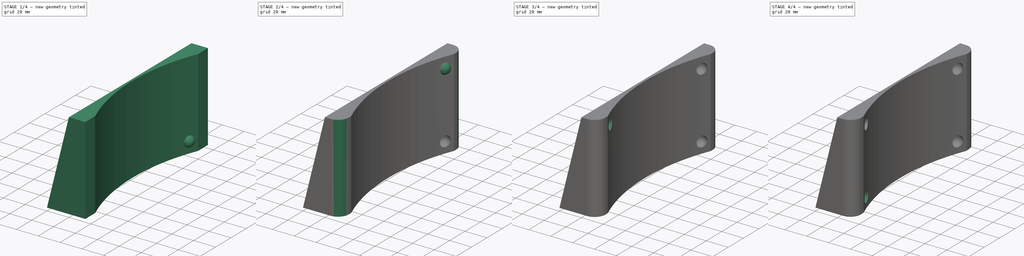
[diagram: build sequence overview — one tinted view per stage of 4, left to right]
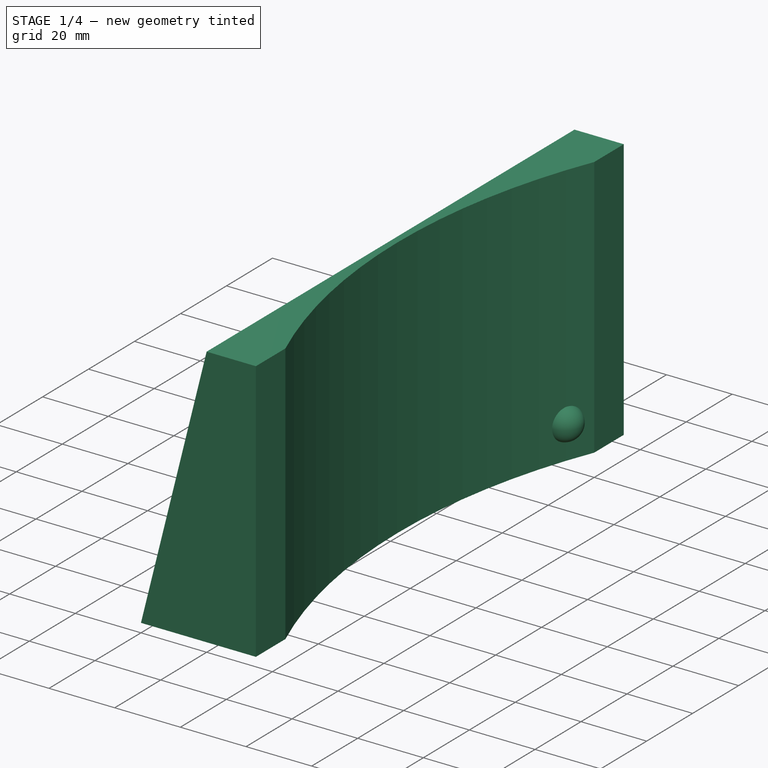
[diagram: stage 1 of 4 — iso view after this stage's code; geometry added in this stage tinted green]
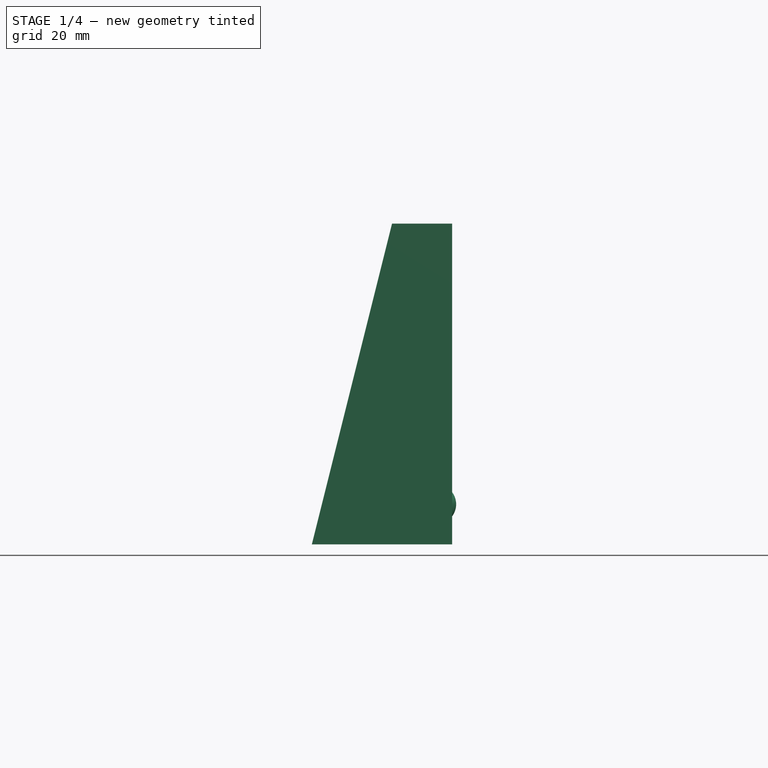
[diagram: stage 1 of 4 — front view after this stage's code; geometry added in this stage tinted green]
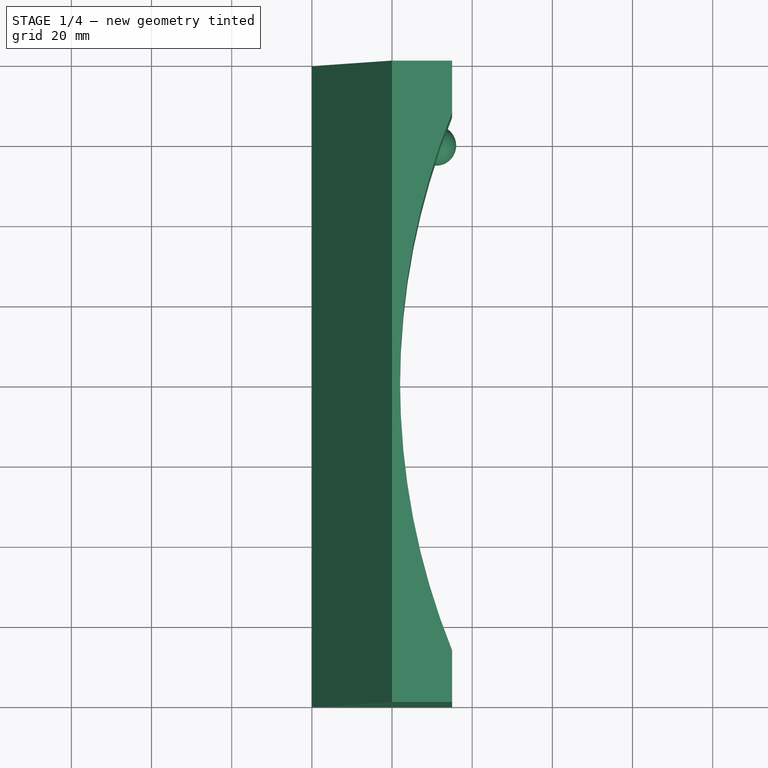
[diagram: stage 1 of 4 — top view after this stage's code; geometry added in this stage tinted green]
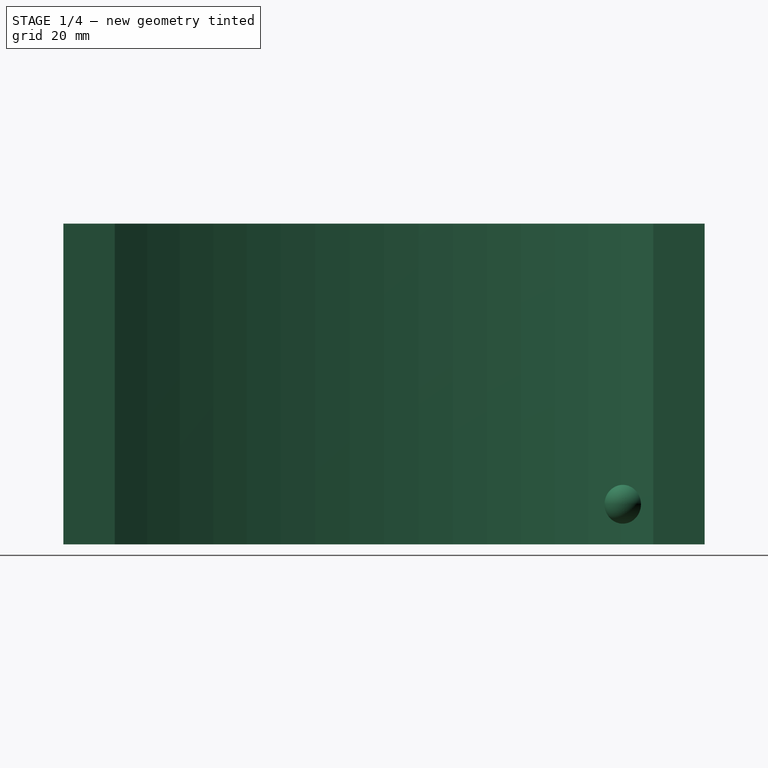
[diagram: stage 1 of 4 — right view after this stage's code; geometry added in this stage tinted green]
FCSTD DOCUMENT  (FreeCAD 0.16R6706 (Git))
Label: support-v1
License: All rights reserved
LicenseURL: http://en.wikipedia.org/wiki/All_rights_reserved
objects: Part::Sphere×4, Part::Cut×4, Sketcher::SketchObject×2, PartDesign::Pad×1, PartDesign::Pocket×1, PartDesign::Fillet×1, PartDesign::Chamfer×1
note: 16 computed .brp shape members not serialized (recipe doc carries the construction recipe); baked Part::Feature solids carry a one-line shape summary decoded from their .brp

FEATURE [Sketcher::SketchObject] Sketch
  Placement = pos=(0,0,0) rot=(-1,0,0;4.71239rad)
  sketch-geometry (4):
    g0: LineSegment StartX=0 StartY=0 StartZ=0 EndX=35 EndY=0 EndZ=0
    g1: LineSegment StartX=35 StartY=0 StartZ=0 EndX=35 EndY=80 EndZ=0
    g2: LineSegment StartX=35 StartY=80 StartZ=0 EndX=20 EndY=80 EndZ=0
    g3: LineSegment StartX=20 StartY=80 StartZ=0 EndX=0 EndY=0 EndZ=0
  constraints (11):
    c: Horizontal(g0)
    c: Coincident(g0,g1)
    c: Vertical(g1)
    c: Coincident(g1,g2)
    c: Horizontal(g2)
    c: Coincident(g2,g3)
    c: Coincident(g3,g0)
    c: DistanceX(g2,g2) = 15
    c: DistanceX(g0,g0) = 35
    c: DistanceY(g1,g1) = 80
    c: Coincident(g0,g-1)
FEATURE [PartDesign::Pad] Pad
  Length = 160
  Length2 = 100
  Placement = pos=(0,0,0) rot=(-1,0,0;4.71239rad)
  Sketch = -> Sketch
  Type = 0
FEATURE [Sketcher::SketchObject] Sketch001
  Placement = pos=(0,0,80) rot=(0,0,1;3.14159rad)
  Support = -> Pad [Face3]
  sketch-geometry (1):
    g0: Circle CenterX=-202 CenterY=80 CenterZ=0 NormalX=0 NormalY=0 NormalZ=1 Radius=180
  constraints (3):
    c: DistanceX(g0,g-1) = 202
    c: DistanceY(g-1,g0) = 80
    c: Radius(g0) = 180
FEATURE [PartDesign::Pocket] Pocket
  Length = 5
  Placement = pos=(0,0,0) rot=(-1,0,0;4.71239rad)
  Sketch = -> Sketch001
  Type = 1
FEATURE [Part::Sphere] Sphere  label="Sphère"
  Angle1 = -90
  Angle2 = 90
  Angle3 = 360
  Placement = pos=(31,-20,10) rot=(0,0,1;0rad)
  Radius = 5
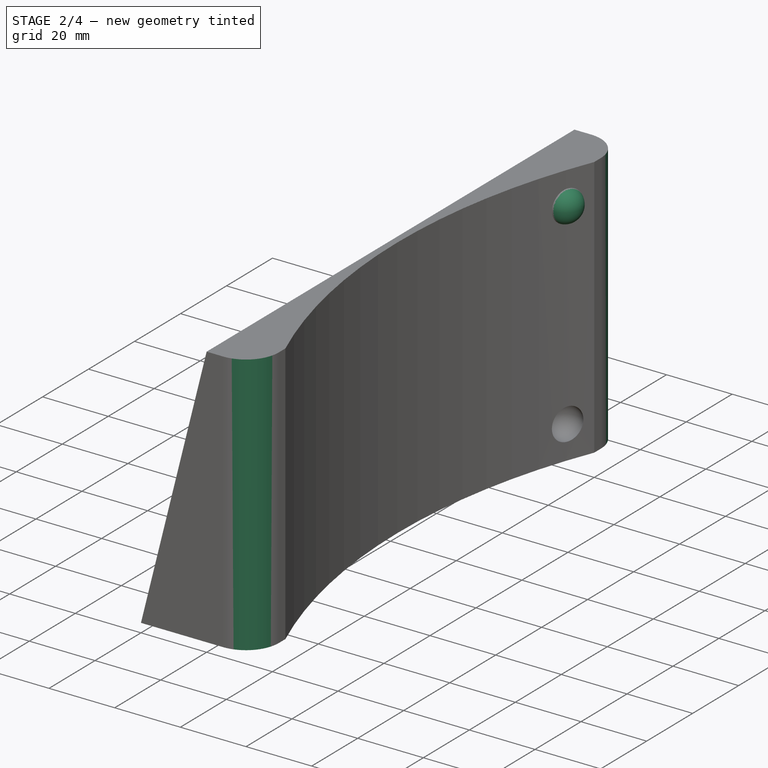
[diagram: stage 2 of 4 — iso view after this stage's code; geometry added in this stage tinted green]
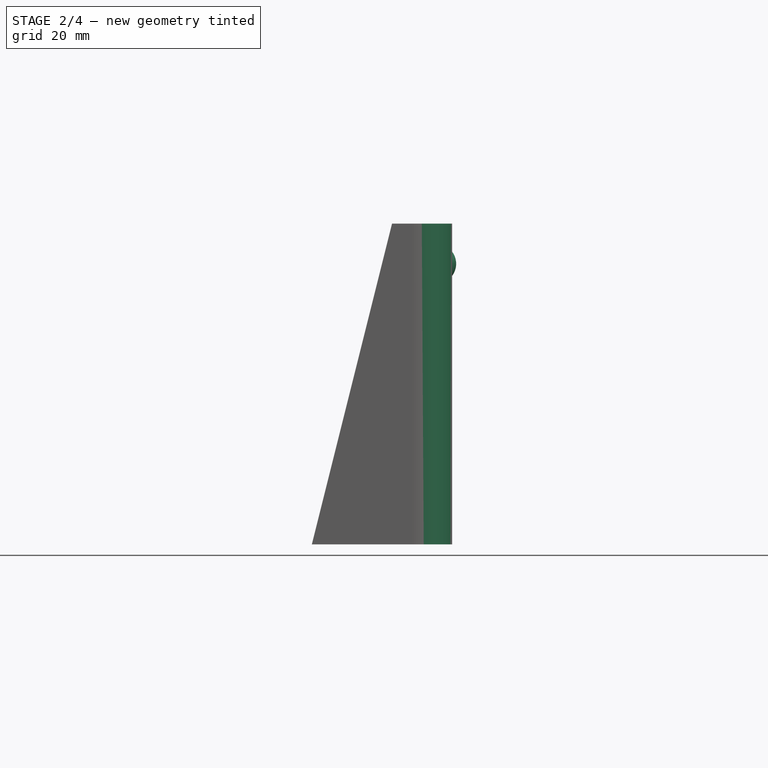
[diagram: stage 2 of 4 — front view after this stage's code; geometry added in this stage tinted green]
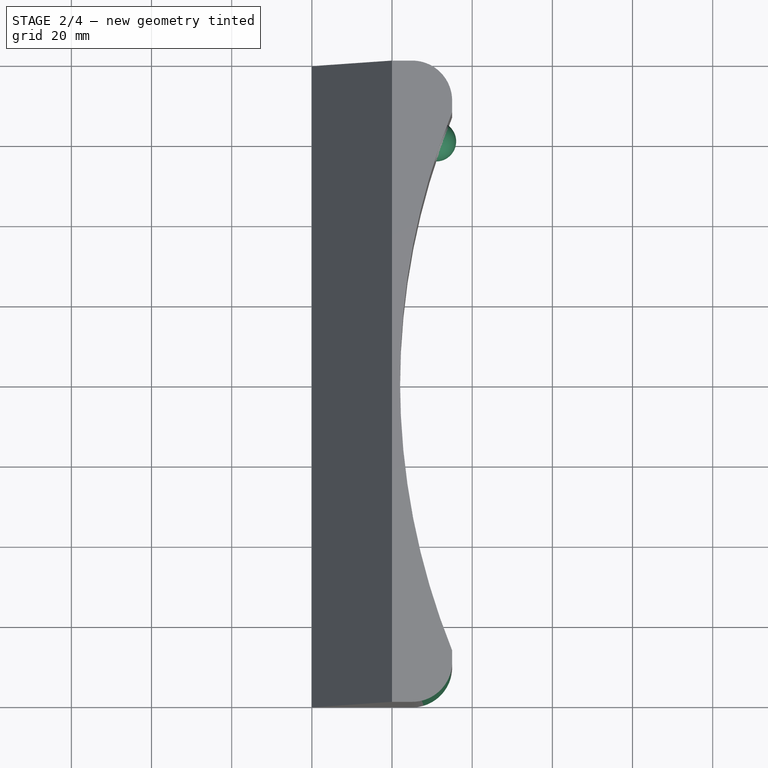
[diagram: stage 2 of 4 — top view after this stage's code; geometry added in this stage tinted green]
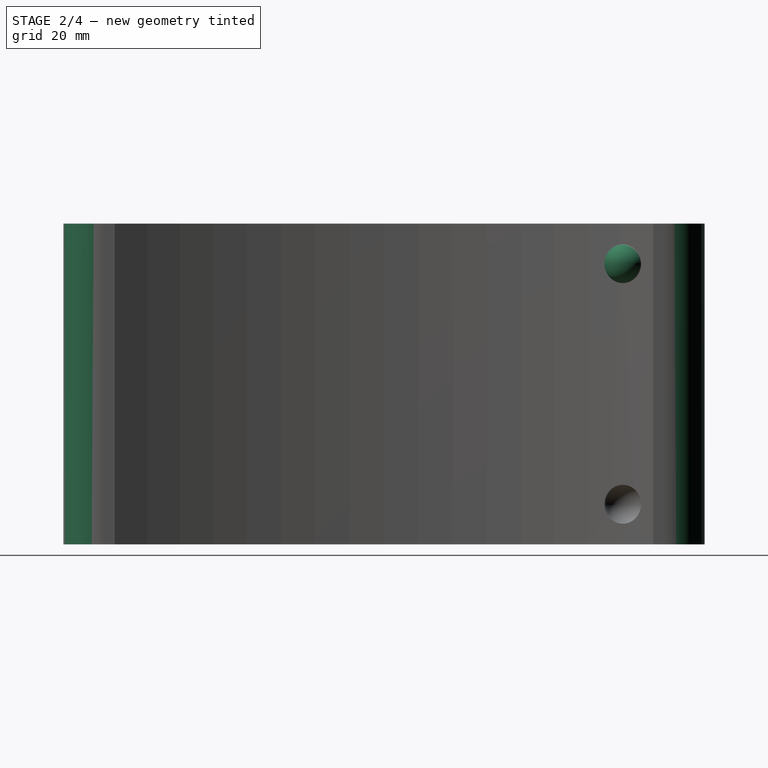
[diagram: stage 2 of 4 — right view after this stage's code; geometry added in this stage tinted green]
FEATURE [PartDesign::Fillet] Fillet
  Base = -> Pocket [Edge8,Edge18]
  Placement = pos=(0,0,0) rot=(-1,0,0;4.71239rad)
  Radius = 10
FEATURE [Part::Sphere] Sphere001  label="Sphère001"
  Angle1 = -90
  Angle2 = 90
  Angle3 = 360
  Placement = pos=(31,-20,70) rot=(0,0,1;0rad)
  Radius = 5
FEATURE [Part::Cut] Cut
  Base = -> Fillet
  Tool = -> Sphere
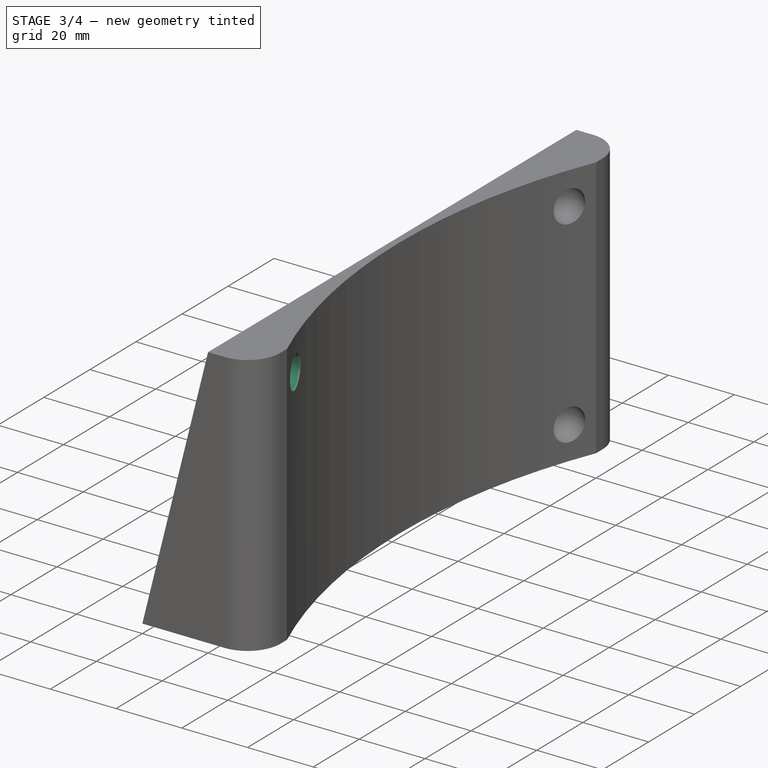
[diagram: stage 3 of 4 — iso view after this stage's code; geometry added in this stage tinted green]
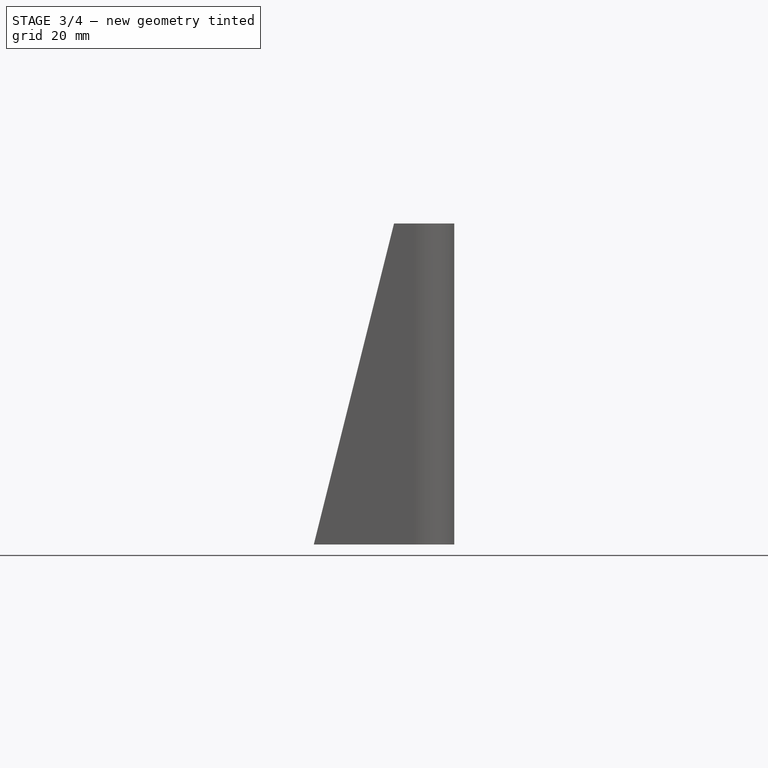
[diagram: stage 3 of 4 — front view after this stage's code; geometry added in this stage tinted green]
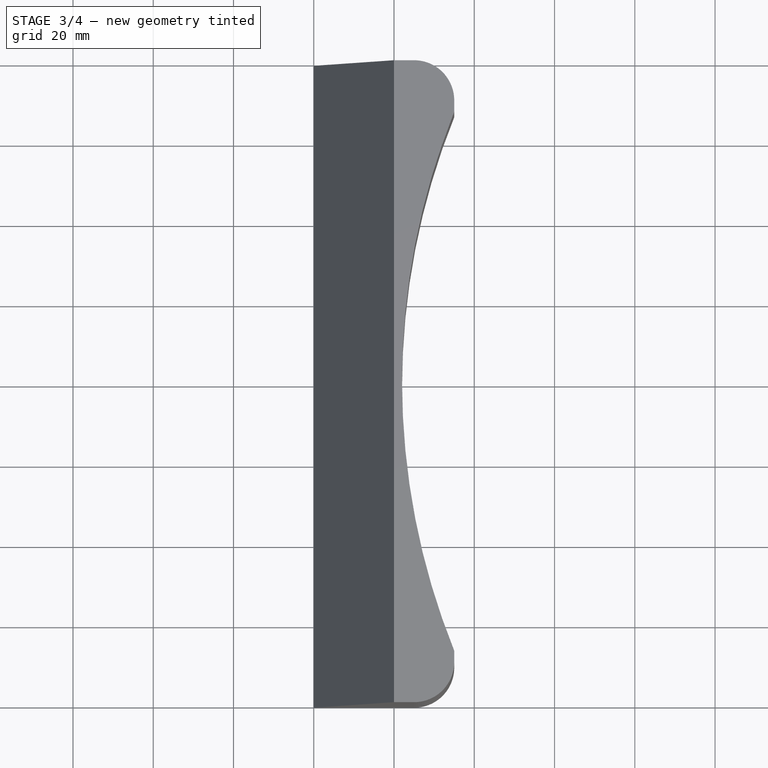
[diagram: stage 3 of 4 — top view after this stage's code; geometry added in this stage tinted green]
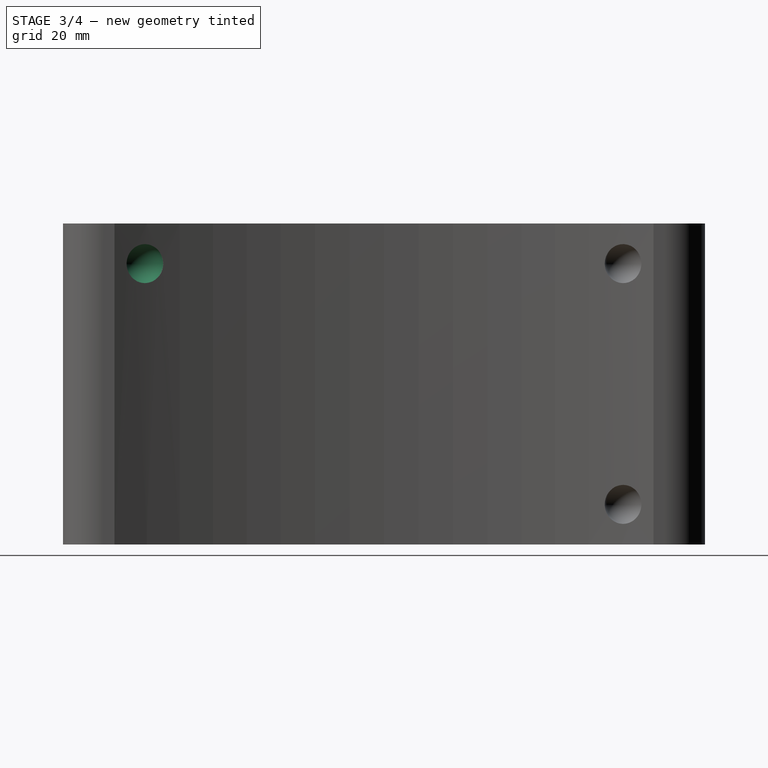
[diagram: stage 3 of 4 — right view after this stage's code; geometry added in this stage tinted green]
FEATURE [Part::Sphere] Sphere003  label="Sphère003"
  Angle1 = -90
  Angle2 = 90
  Angle3 = 360
  Placement = pos=(31,-140,70) rot=(0,0,1;0rad)
  Radius = 5
FEATURE [Part::Cut] Cut001
  Base = -> Cut
  Tool = -> Sphere001
FEATURE [Part::Cut] Cut002
  Base = -> Cut001
  Tool = -> Sphere003
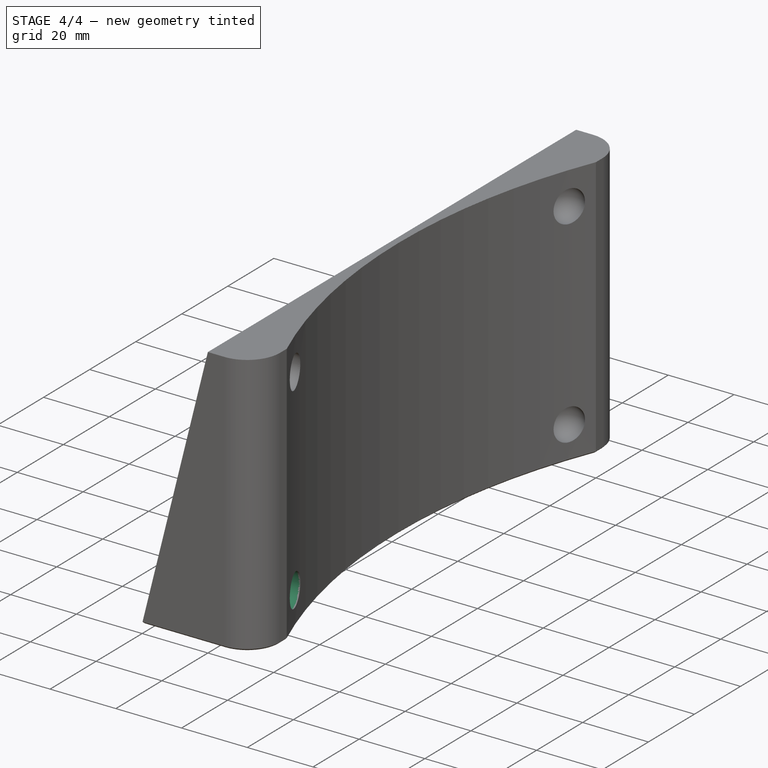
[diagram: stage 4 of 4 — iso view after this stage's code; geometry added in this stage tinted green]
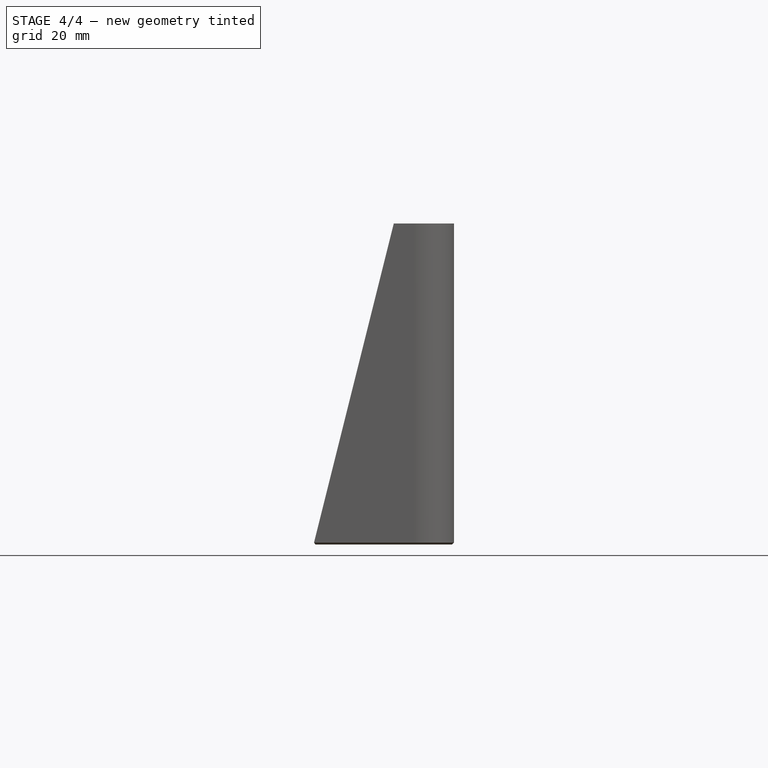
[diagram: stage 4 of 4 — front view after this stage's code; geometry added in this stage tinted green]
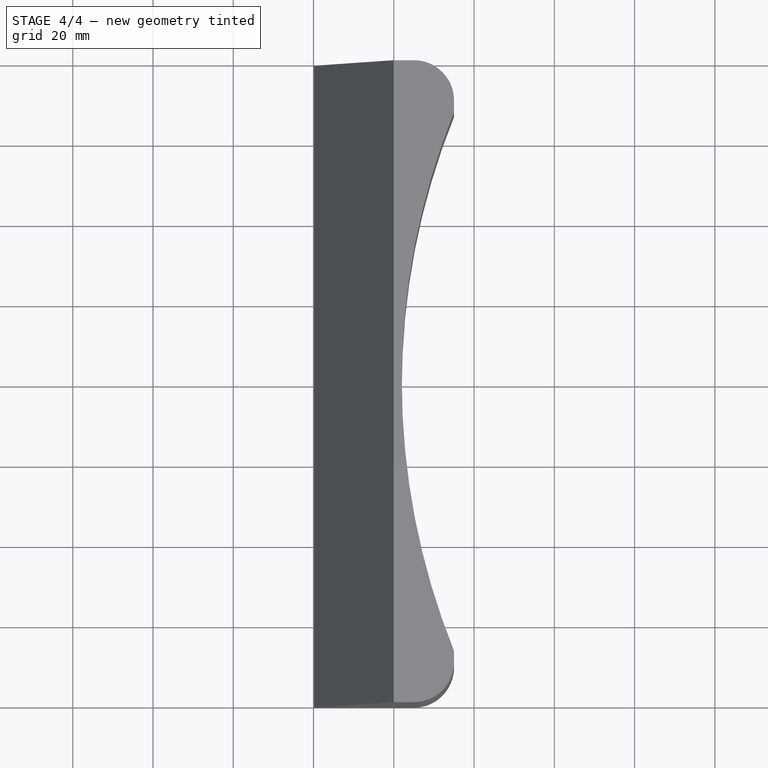
[diagram: stage 4 of 4 — top view after this stage's code; geometry added in this stage tinted green]
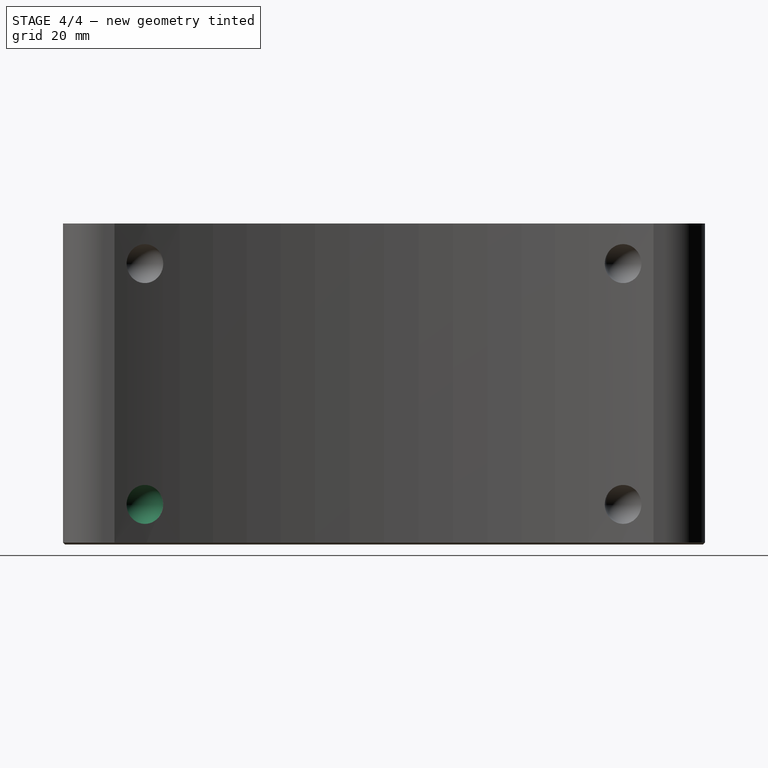
[diagram: stage 4 of 4 — right view after this stage's code; geometry added in this stage tinted green]
FEATURE [Part::Sphere] Sphere002  label="Sphère002"
  Angle1 = -90
  Angle2 = 90
  Angle3 = 360
  Placement = pos=(31,-140,10) rot=(0,0,1;0rad)
  Radius = 5
FEATURE [Part::Cut] Cut003
  Base = -> Cut002
  Tool = -> Sphere002
FEATURE [PartDesign::Chamfer] Chamfer
  Base = -> Cut003 [Edge1,Edge2,Edge3,Edge4,Edge5,Edge6,Edge7,Edge8,Edge9]
  Size = 0.5
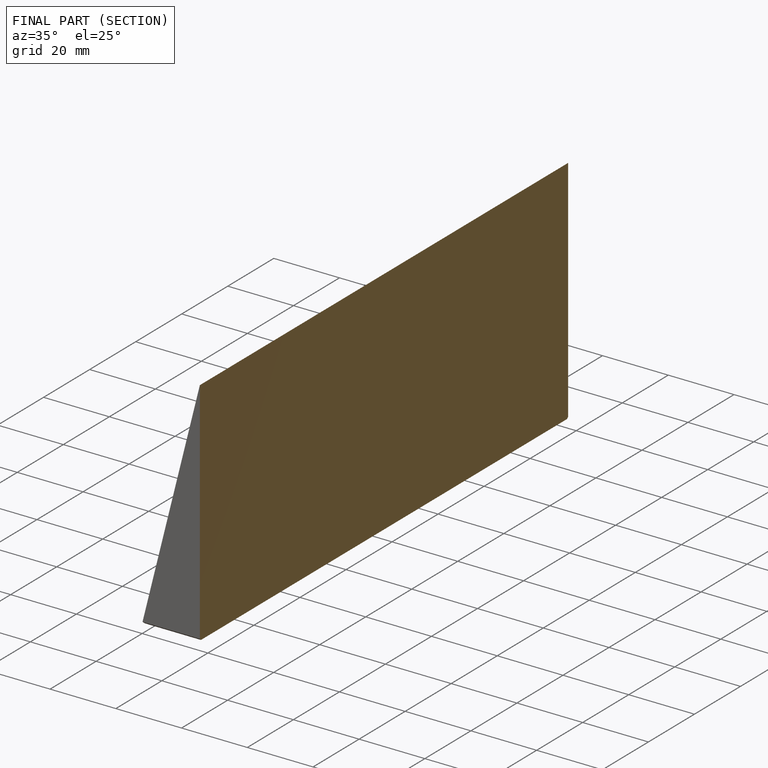
[diagram: finished part — half-section view (interior)]
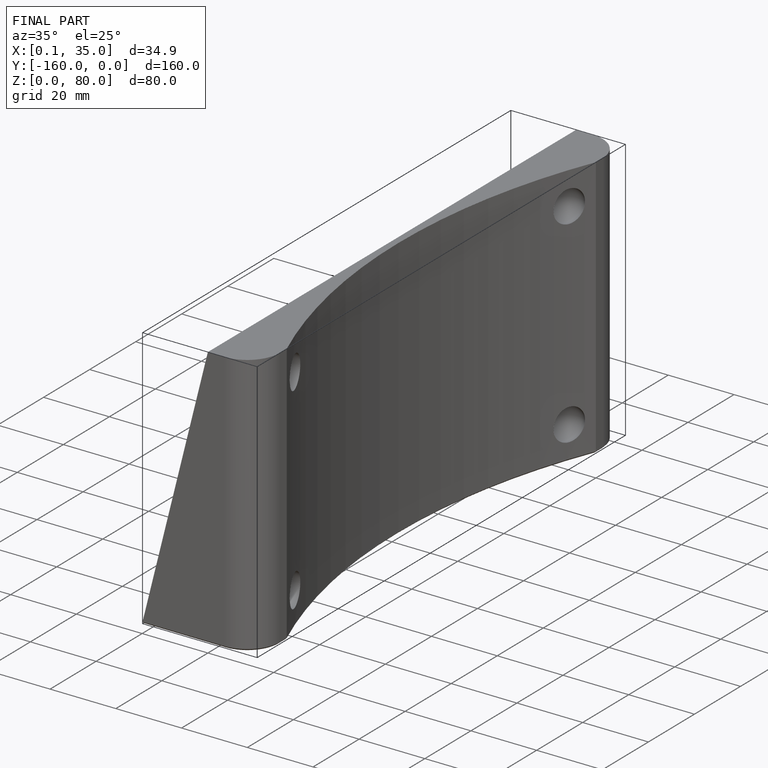
[diagram: finished part — iso view with bounding-box wireframe]
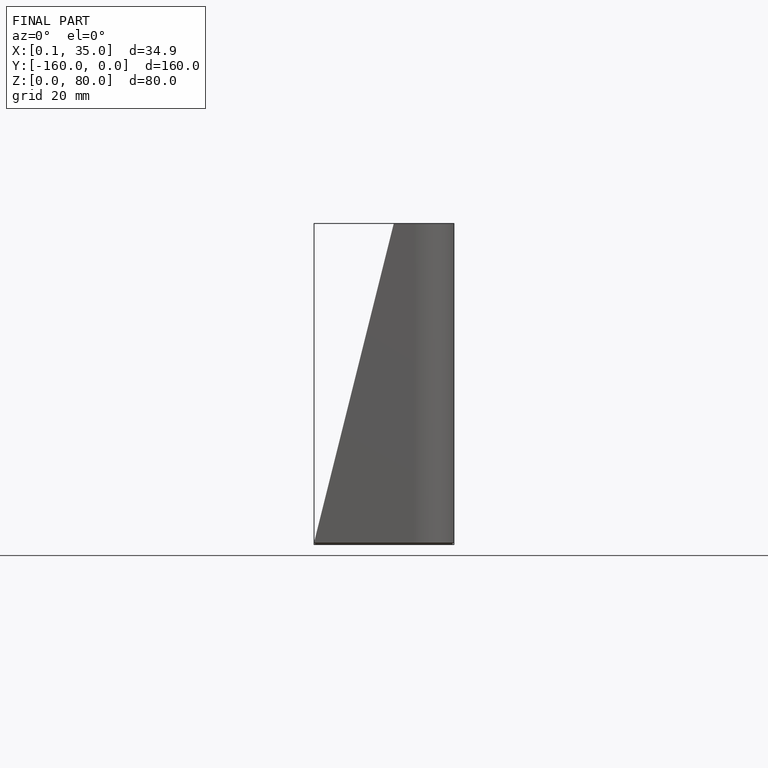
[diagram: finished part — front view with bounding-box wireframe]
